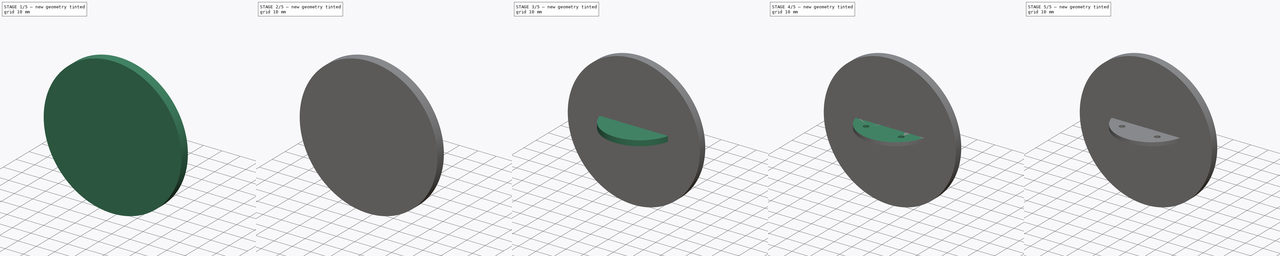
[diagram: build sequence overview — one tinted view per stage of 5, left to right]
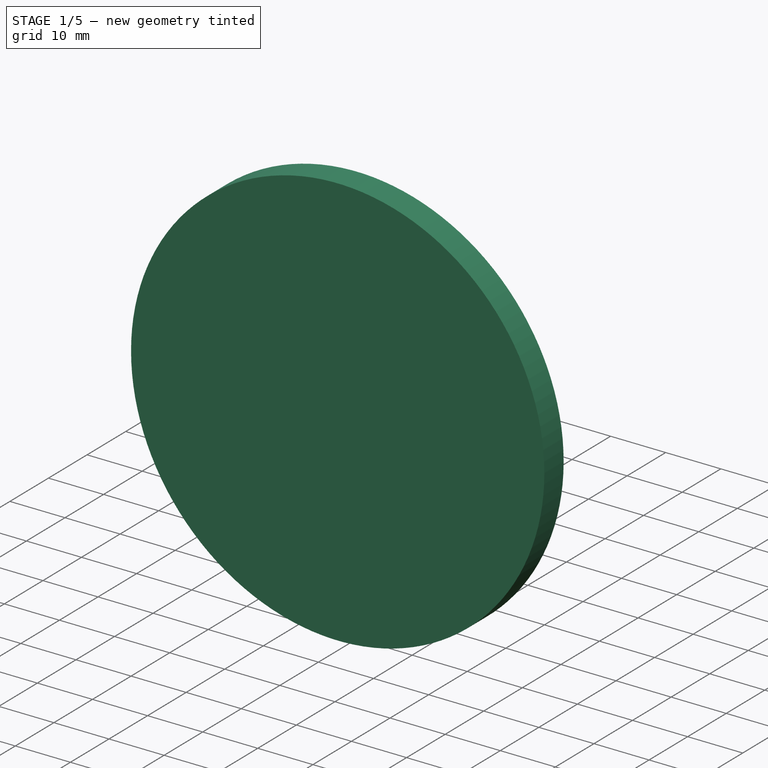
[diagram: stage 1 of 5 — iso view after this stage's code; geometry added in this stage tinted green]
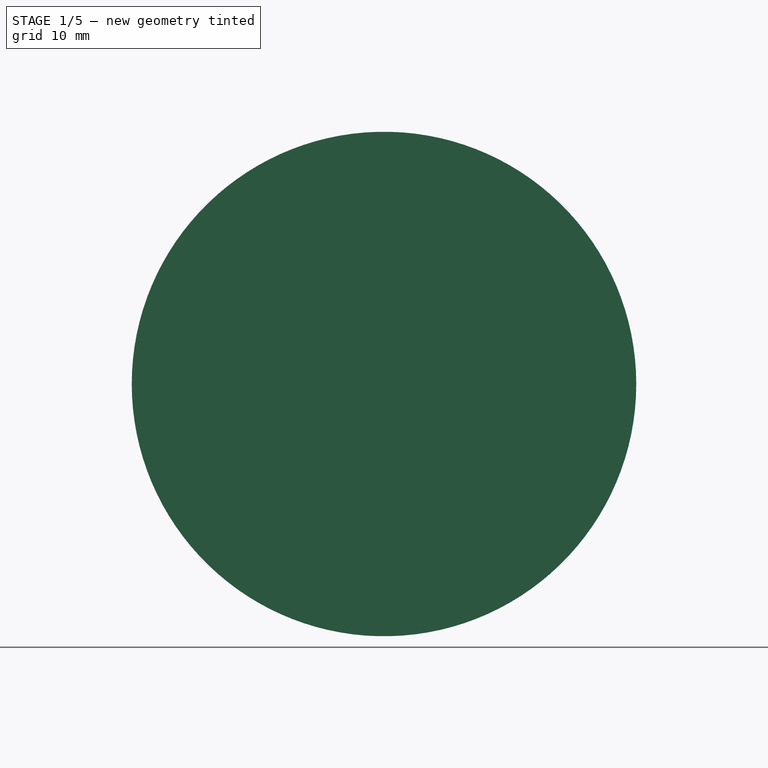
[diagram: stage 1 of 5 — front view after this stage's code; geometry added in this stage tinted green]
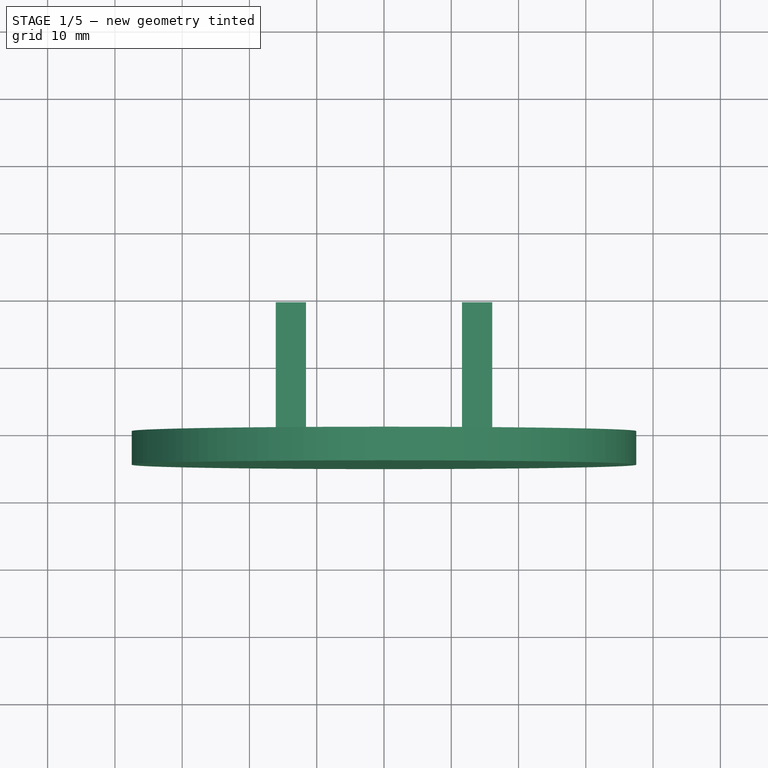
[diagram: stage 1 of 5 — top view after this stage's code; geometry added in this stage tinted green]
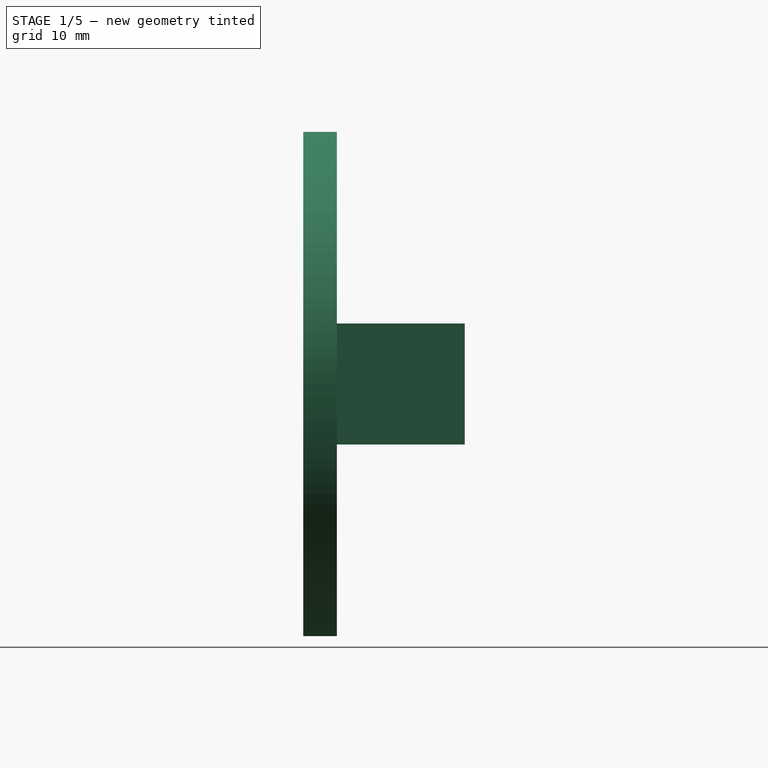
[diagram: stage 1 of 5 — right view after this stage's code; geometry added in this stage tinted green]
FCSTD DOCUMENT  (FreeCAD 1.2R20260429 (Git shallow))
Label: Camera Mount V2
License: All rights reserved
LicenseURL: https://en.wikipedia.org/wiki/All_rights_reserved
objects: Sketcher::SketchObject×14, PartDesign::Pad×8, PartDesign::Pocket×6, App::Point×3, PartDesign::SubShapeBinder×3, PartDesign::Body×3, PartDesign::Mirrored×3, PartDesign::Chamfer×3, Part::Feature×2, PartDesign::Fillet×2, Part::DatumPlane×1
note: 99 computed .brp shape members not serialized (recipe doc carries the construction recipe); baked Part::Feature solids carry a one-line shape summary decoded from their .brp

FEATURE [App::Point] Origin005  label="Origin-Point002"
  Role = Origin
FEATURE [Part::Feature] Part__Feature001  label="Tower Pro MG90S Micro servo"
  Placement = pos=(0,12,0) rot=(0,0,1;0rad)
  shape: bbox 32.28 x 33.03 x 12.77 mm, 767 faces (baked)
FEATURE [Sketcher::SketchObject] Sketch009
  ArcFitTolerance = 1e-06
  AttachmentSupport = -> [Origin004]
  ExternalTypes = [0]
  FullyConstrained = true
  MakeInternals = false
  MapMode = 5
  Placement = pos=(0,0,0) rot=(1,0,0;1.5708rad)
  sketch-geometry (1):
    g0: Circle CenterX=0 CenterY=0 CenterZ=0 NormalX=0 NormalY=0 NormalZ=1 AngleXU=0 Radius=37.5
  constraints (2):
    c: Coincident(g0,g-1)
    c: Diameter(g0) = 75
FEATURE [PartDesign::Pad] Pad003
  Direction = (0,-1,0)
  Length = 5
  Length2 = 10
  Profile = -> Sketch009
  ReferenceAxis = -> Sketch009 [N_Axis]
  Refine = true
  SideType = 0
  Suppressed = false
  Type = 0
  Type2 = 0
FEATURE [PartDesign::SubShapeBinder] Binder002
  BindCopyOnChange = 0
  BindMode = 0
  ClaimChildren = false
  Context = -> Body002 [Binder002.]
  Fuse = false
  MakeFace = true
  OffsetFill = false
  OffsetIntersection = false
  OffsetJoinType = 0
  OffsetOpenResult = false
  PartialLoad = false
  Placement = pos=(0,-20,0) rot=(0,0,1;0rad)
  Refine = true
  Relative = true
  Support = -> [Part__Feature001[Edge835,Edge1881,Edge850,Edge826,Edge1882,Edge847,Edge857,Edge1880]]
  _Version = 2
FEATURE [Sketcher::SketchObject] Sketch010
  ArcFitTolerance = 1e-06
  AttachmentSupport = -> [Pad003]
  ExternalGeometry = -> [Binder002]
  ExternalTypes = [0,0]
  FullyConstrained = false
  MakeInternals = false
  MapMode = 5
  Placement = pos=(0,0,0) rot=(0,0.707107,0.707107;3.14159rad)
  sketch-geometry (5):
    g0: LineSegment StartX=16.1 StartY=-9 StartZ=0 EndX=16.1 EndY=9 EndZ=0
    g1: LineSegment StartX=11.6 StartY=9 StartZ=0 EndX=11.6 EndY=-9 EndZ=0
    g2: Circle CenterX=13.75 CenterY=0 CenterZ=0 NormalX=0 NormalY=0 NormalZ=1 AngleXU=0 Radius=1.25
    g3: LineSegment StartX=11.6 StartY=9 StartZ=0 EndX=16.1 EndY=9 EndZ=0
    g4: LineSegment StartX=11.6 StartY=-9 StartZ=0 EndX=16.1 EndY=-9 EndZ=0
  constraints (11):
    c: DistanceX(g1,g0) = 4.5
    c: Coincident(g2,g-4)
    c: Diameter(g2) = 2.5
    c: DistanceY(g0,g0) = 18
    c: Symmetric(g0,g0,g-1)
    c: Equal(g1,g0)
    c: Symmetric(g1,g1,g-1)
    c: Coincident(g3,g1)
    c: Coincident(g3,g0)
    c: Coincident(g4,g1)
    c: Coincident(g4,g0)
FEATURE [PartDesign::Pad] Pad004
  BaseFeature = -> Pad003
  Direction = (0,1,-2e-16)
  Length = 19
  Length2 = 10
  Profile = -> Sketch010
  ReferenceAxis = -> Sketch010 [N_Axis]
  Refine = true
  SideType = 0
  Suppressed = false
  Type = 0
  Type2 = 0
FEATURE [PartDesign::Body] Body001  label="Top"
  AllowCompound = true
  Group = -> [Binder001,Sketch005,Pad001,DatumPlane,Sketch006,Pad002,Mirrored,Sketch007,Pocket005,Sketch008,Pocket006,Chamfer002]
  Origin = -> Origin002
  Placement = pos=(0,0,-3) rot=(0,0,1;0rad)
  Tip = -> Chamfer002
FEATURE [PartDesign::Pad] Pad005
  BaseFeature = -> Pad004
  Direction = (1e-16,1,-2e-16)
  Length = 19
  Length2 = 10
  Profile = -> Sketch010
  ReferenceAxis = -> Sketch010 [N_Axis]
  Refine = true
  SideType = 0
  Suppressed = false
  Type = 0
  Type2 = 0
FEATURE [Sketcher::SketchObject] Sketch011
  ArcFitTolerance = 1e-06
  AttachmentSupport = -> [Pad005]
  ExternalTypes = [0]
  FullyConstrained = true
  MakeInternals = false
  MapMode = 5
  Placement = pos=(-16.1,0,-5.1383e-12) rot=(0.57735,-0.57735,-0.57735;2.0944rad)
  sketch-geometry (4):
    g0: LineSegment StartX=-14 StartY=2.5 StartZ=0 EndX=-14 EndY=-2.5 EndZ=0
    g1: LineSegment StartX=-14 StartY=-2.5 StartZ=0 EndX=-4 EndY=-2.5 EndZ=0
    g2: LineSegment StartX=-4 StartY=-2.5 StartZ=0 EndX=-4 EndY=2.5 EndZ=0
    g3: LineSegment StartX=-4 StartY=2.5 StartZ=0 EndX=-14 EndY=2.5 EndZ=0
  constraints (11):
    c: Coincident(g0,g1)
    c: Coincident(g1,g2)
    c: Coincident(g2,g3)
    c: Coincident(g3,g0)
    c: Vertical(g2)
    c: Horizontal(g1)
    c: Horizontal(g3)
    c: DistanceX(g3,g3) = 10
    c: DistanceX(g2,g-1) = 4
    c: DistanceY(g0,g0) = 5
    c: Symmetric(g0,g0,g-1)
FEATURE [PartDesign::Mirrored] Mirrored001
  BaseFeature = -> Pad005
  MirrorPlane = -> Sketch010 [V_Axis]
  Originals = -> [Pad005]
  Refine = true
  Suppressed = false
  TransformMode = 0
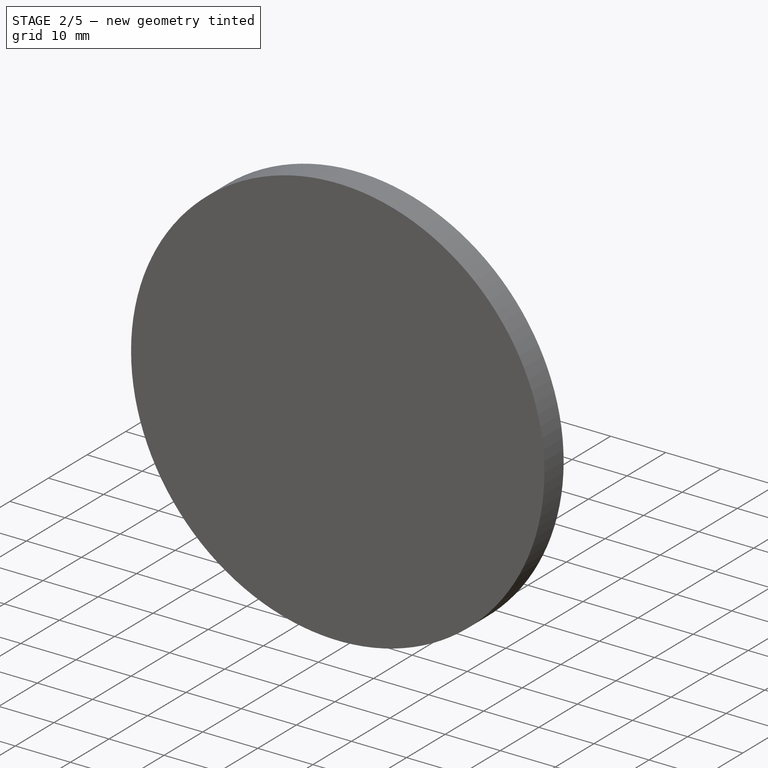
[diagram: stage 2 of 5 — iso view after this stage's code; geometry added in this stage tinted green]
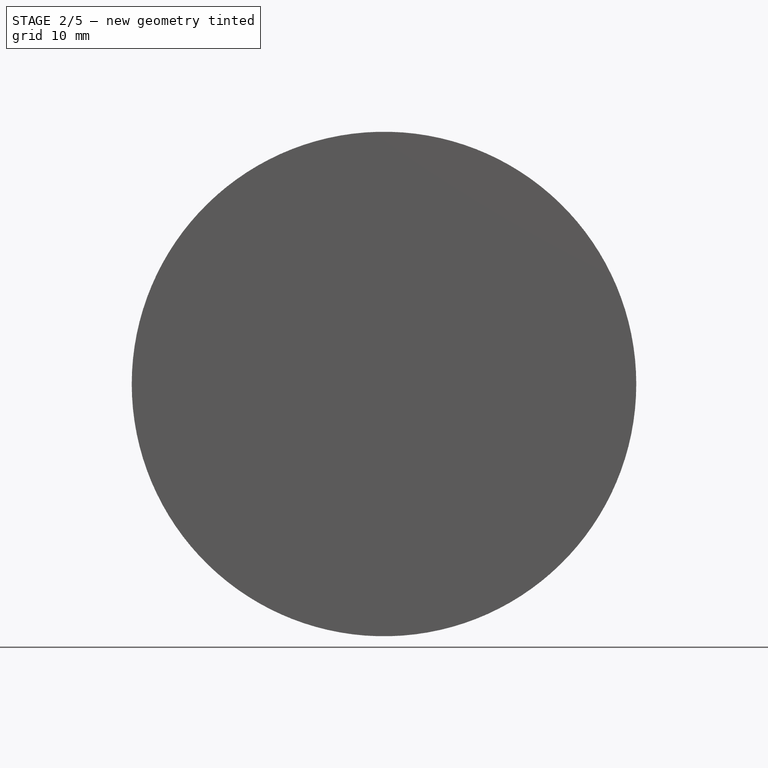
[diagram: stage 2 of 5 — front view after this stage's code; geometry added in this stage tinted green]
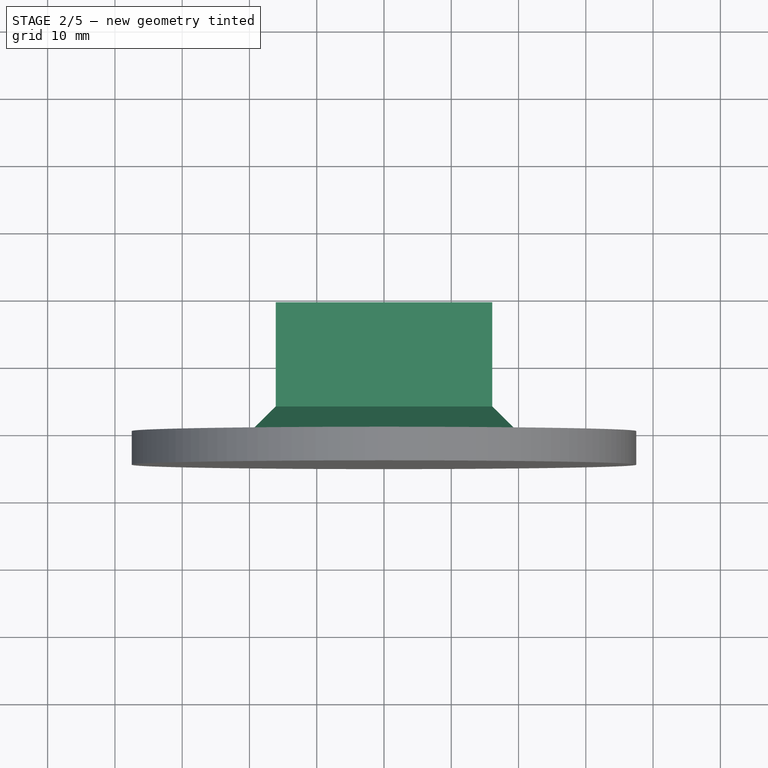
[diagram: stage 2 of 5 — top view after this stage's code; geometry added in this stage tinted green]
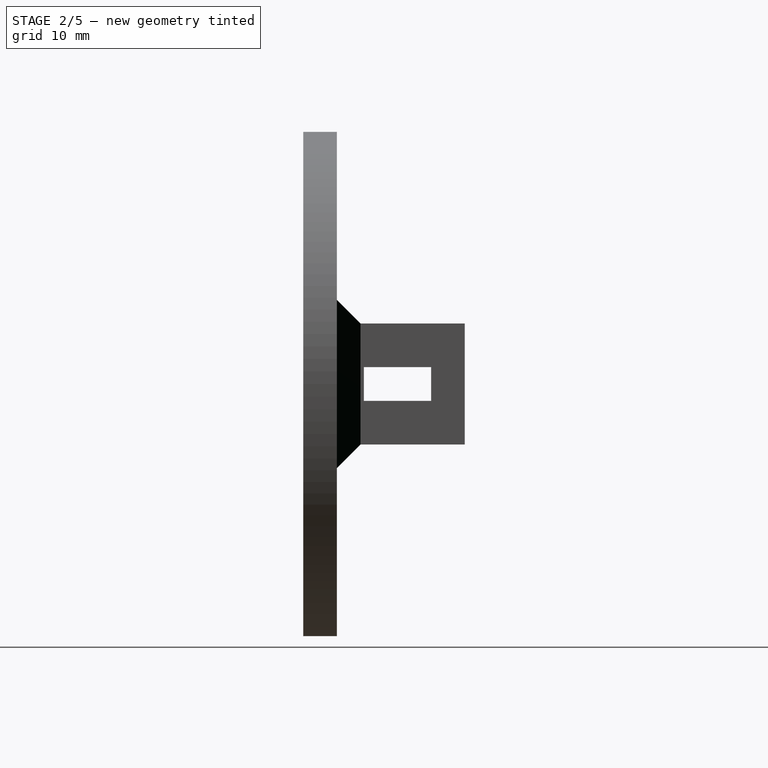
[diagram: stage 2 of 5 — right view after this stage's code; geometry added in this stage tinted green]
FEATURE [PartDesign::Pocket] Pocket007
  BaseFeature = -> Mirrored001
  Direction = (1,-1e-16,3.19e-13)
  Length = 5
  Length2 = 5
  Profile = -> Sketch011
  ReferenceAxis = -> Sketch011 [N_Axis]
  Refine = true
  SideType = 0
  Suppressed = false
  Type = 1
  Type2 = 0
FEATURE [Sketcher::SketchObject] Sketch012
  ArcFitTolerance = 1e-06
  AttachmentSupport = -> [Pocket007]
  ExternalTypes = [0,0]
  FullyConstrained = true
  MakeInternals = false
  MapMode = 5
  Placement = pos=(0,0,0) rot=(0,0.707107,0.707107;3.14159rad)
FEATURE [Sketcher::SketchObject] Sketch013
  ArcFitTolerance = 1e-06
  AttachmentSupport = -> [Pocket007]
  ExternalGeometry = -> [Pocket007]
  ExternalTypes = [0,0]
  FullyConstrained = true
  MakeInternals = false
  MapMode = 5
  Placement = pos=(0,0,0) rot=(0,0.707107,0.707107;3.14159rad)
  sketch-geometry (4):
    g0: LineSegment StartX=-11.6 StartY=-9 StartZ=0 EndX=11.6 EndY=-9 EndZ=0
    g1: LineSegment StartX=11.6 StartY=-9 StartZ=0 EndX=11.6 EndY=-6.5 EndZ=0
    g2: LineSegment StartX=11.6 StartY=-6.5 StartZ=0 EndX=-11.6 EndY=-6.5 EndZ=0
    g3: LineSegment StartX=-11.6 StartY=-6.5 StartZ=0 EndX=-11.6 EndY=-9 EndZ=0
  constraints (10):
    c: Coincident(g0,g1)
    c: Coincident(g1,g2)
    c: Coincident(g2,g3)
    c: Coincident(g3,g0)
    c: Horizontal(g2)
    c: Vertical(g1)
    c: Vertical(g3)
    c: Coincident(g0,g-3)
    c: Coincident(g0,g-4)
    c: DistanceY(g3,g3) = 2.5
FEATURE [PartDesign::Pad] Pad006
  BaseFeature = -> Pocket007
  Direction = (0,1,-2e-16)
  Length = 19
  Length2 = 10
  Profile = -> Sketch013
  ReferenceAxis = -> Sketch013 [N_Axis]
  Refine = true
  SideType = 0
  Suppressed = false
  Type = 0
  Type2 = 0
FEATURE [PartDesign::Mirrored] Mirrored002
  BaseFeature = -> Pad006
  MirrorPlane = -> XY_Plane002
  Originals = -> [Pad006]
  Refine = true
  Suppressed = false
  TransformMode = 0
FEATURE [PartDesign::Chamfer] Chamfer
  Angle = 45
  Base = -> Mirrored002 [Edge7,Edge6,Edge4,Edge5]
  BaseFeature = -> Mirrored002
  ChamferType = 0
  FlipDirection = false
  Refine = true
  Size = 3.5
  Size2 = 1
  SupportTransform = false
  Suppressed = false
  UseAllEdges = false
FEATURE [PartDesign::Chamfer] Chamfer003
  Angle = 45
  Base = -> Chamfer [Edge37,Edge36]
  BaseFeature = -> Chamfer
  ChamferType = 0
  FlipDirection = false
  Refine = true
  Size = 0.5
  Size2 = 1
  SupportTransform = false
  Suppressed = false
  UseAllEdges = false
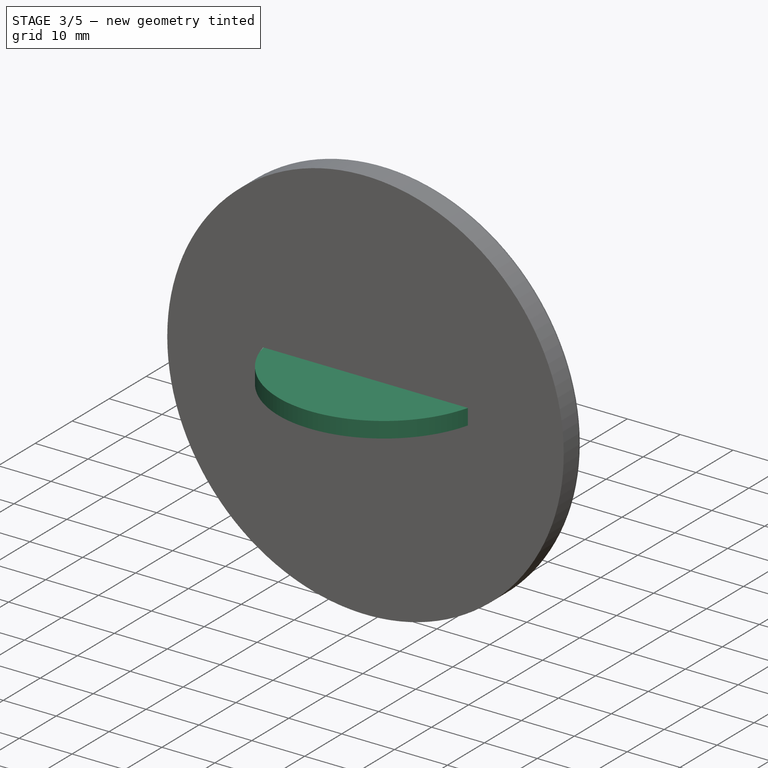
[diagram: stage 3 of 5 — iso view after this stage's code; geometry added in this stage tinted green]
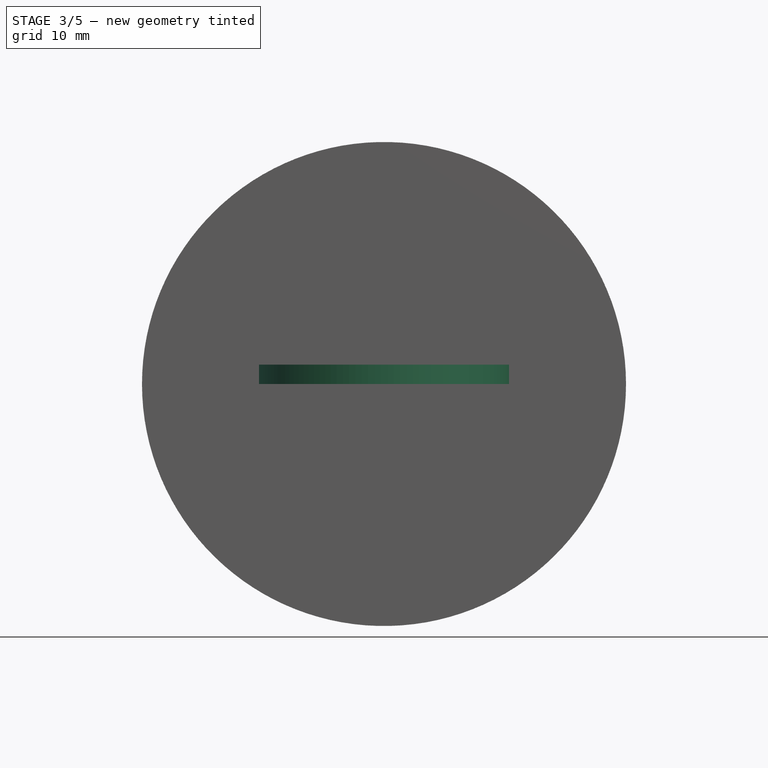
[diagram: stage 3 of 5 — front view after this stage's code; geometry added in this stage tinted green]
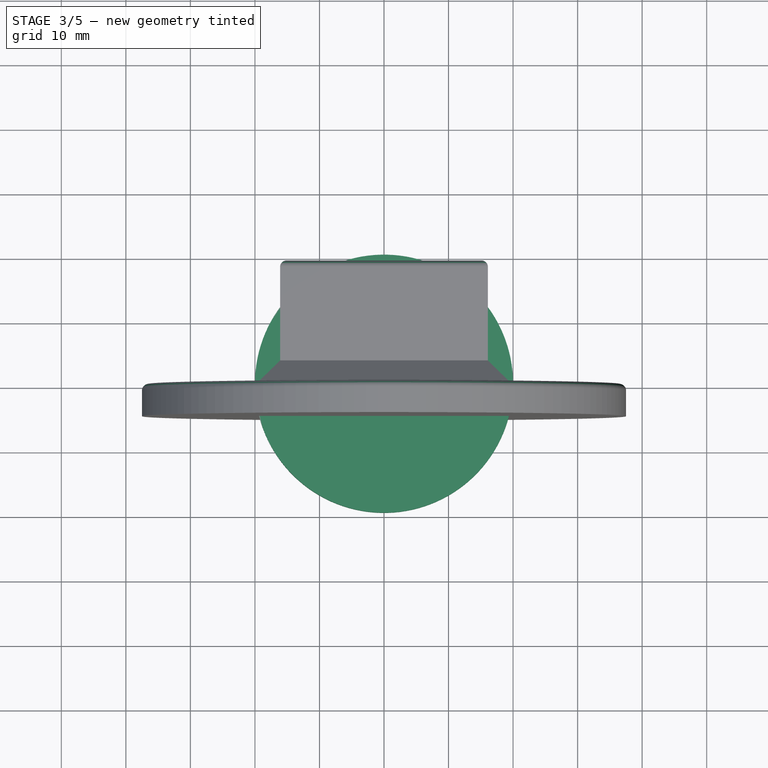
[diagram: stage 3 of 5 — top view after this stage's code; geometry added in this stage tinted green]
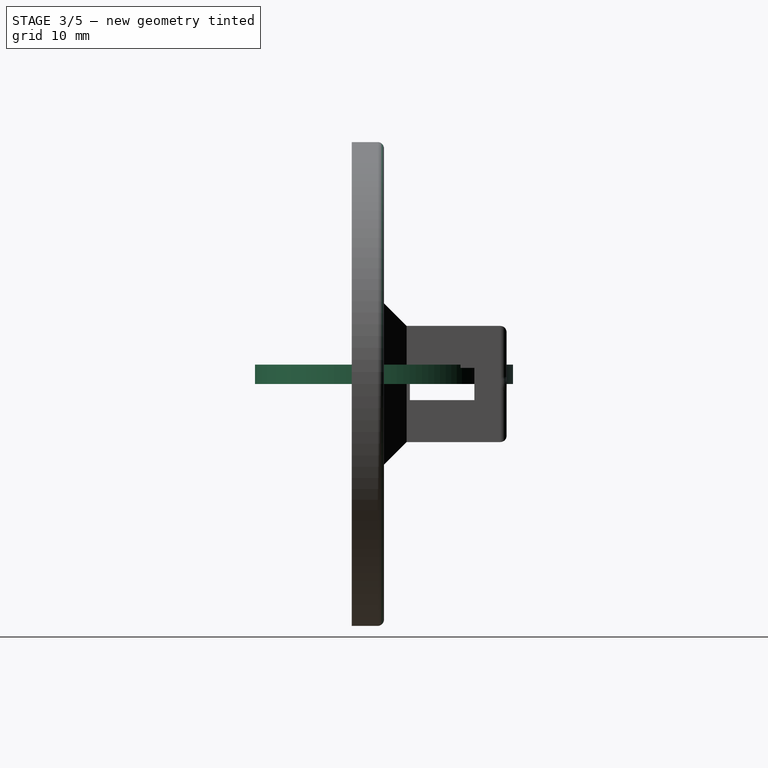
[diagram: stage 3 of 5 — right view after this stage's code; geometry added in this stage tinted green]
FEATURE [App::Point] Origin001  label="Origin-Point"
  Role = Origin
FEATURE [Part::Feature] Part__Feature  label="MG90s_Horn v4"
  Placement = pos=(0,9e-16,10) rot=(1,0,0;3.14159rad)
  shape: bbox 36 x 8 x 5 mm, 54 faces (baked)
FEATURE [Sketcher::SketchObject] Sketch
  ArcFitTolerance = 1e-06
  ExternalTypes = [0]
  FullyConstrained = true
  MakeInternals = false
  MapMode = 4
  sketch-geometry (1):
    g0: Circle CenterX=0 CenterY=0 CenterZ=0 NormalX=0 NormalY=0 NormalZ=1 AngleXU=0 Radius=20
  constraints (2):
    c: Coincident(g0,g-1)
    c: Diameter(g0) = 40
FEATURE [PartDesign::Pad] Pad
  Direction = (0,0,1)
  Length = 3
  Length2 = 10
  Profile = -> Sketch
  ReferenceAxis = -> Sketch [N_Axis]
  Refine = true
  SideType = 0
  Suppressed = false
  Type = 0
  Type2 = 0
FEATURE [Sketcher::SketchObject] Sketch014
  ArcFitTolerance = 1e-06
  AttachmentSupport = -> [Chamfer003]
  ExternalGeometry = -> [Chamfer003]
  ExternalTypes = [0,0]
  FullyConstrained = true
  MakeInternals = false
  MapMode = 5
  Placement = pos=(4e-16,4,-4e-16) rot=(0,0.707107,0.707107;3.14159rad)
FEATURE [PartDesign::Pad] Pad007
  BaseFeature = -> Chamfer003
  Direction = (0,1,-2e-16)
  Length = 8
  Length2 = 10
  Profile = -> Sketch014
  ReferenceAxis = -> Sketch014 [N_Axis]
  Refine = true
  Reversed = true
  SideType = 0
  Suppressed = false
  Type = 0
  Type2 = 0
FEATURE [PartDesign::Fillet] Fillet
  Base = -> Pad007 [Edge5,Edge2,Edge3,Edge4]
  BaseFeature = -> Pad007
  Radius = 1
  Refine = true
  SupportTransform = false
  Suppressed = false
  UseAllEdges = false
FEATURE [PartDesign::Fillet] Fillet001
  Base = -> Fillet [Edge93]
  BaseFeature = -> Fillet
  Radius = 1
  Refine = true
  SupportTransform = false
  Suppressed = false
  UseAllEdges = false
FEATURE [PartDesign::Body] Body002  label="Body"
  AllowCompound = true
  Group = -> [Sketch009,Pad003,Sketch010,Binder002,Pad004,Pad005,Sketch011,Mirrored001,Pocket007,Sketch012,Sketch013,Pad006,Mirrored002,Chamfer,Chamfer003,Sketch014,Pad007,Fillet,Fillet001]
  Origin = -> Origin004
  Tip = -> Fillet001
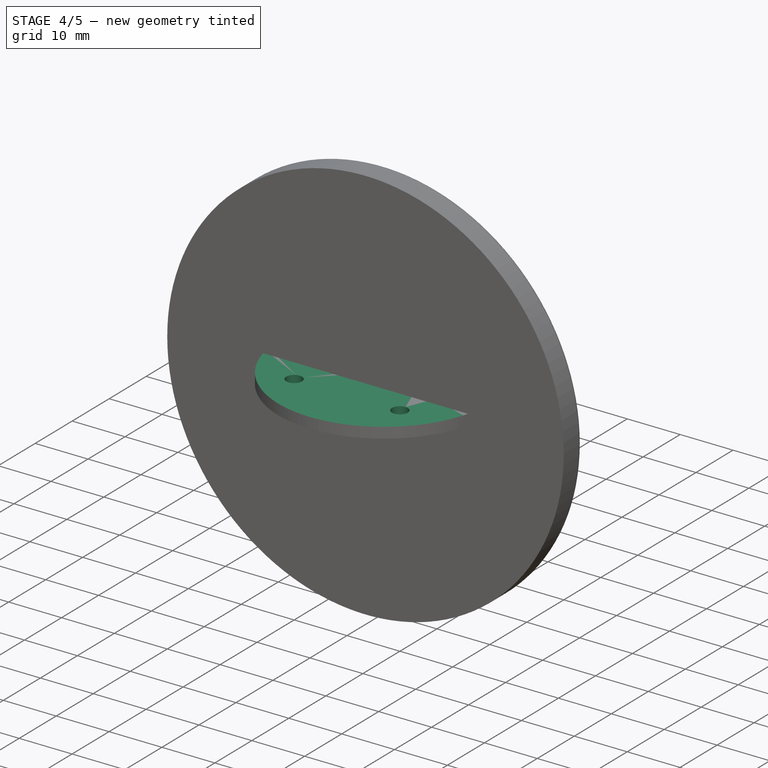
[diagram: stage 4 of 5 — iso view after this stage's code; geometry added in this stage tinted green]
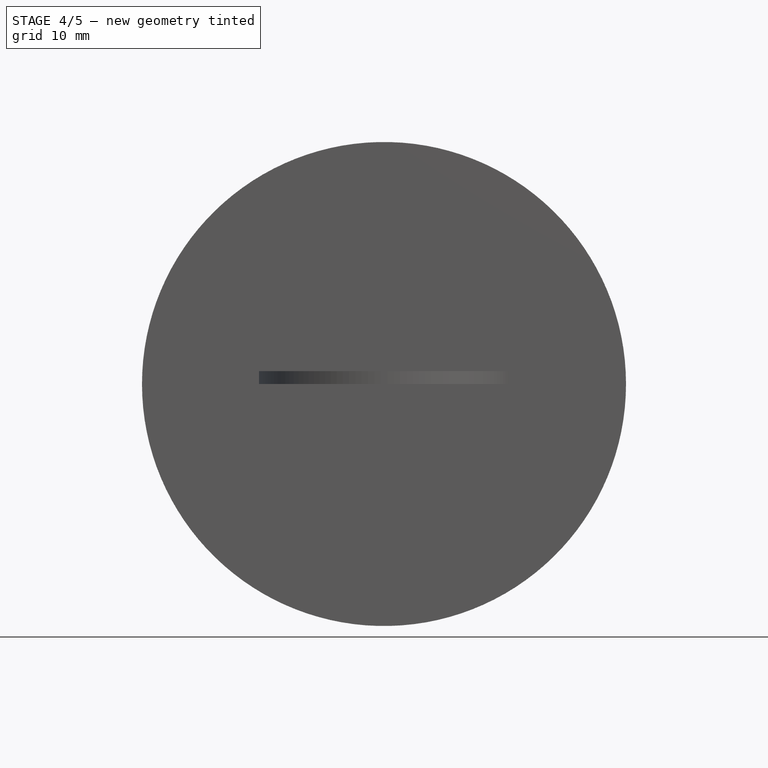
[diagram: stage 4 of 5 — front view after this stage's code; geometry added in this stage tinted green]
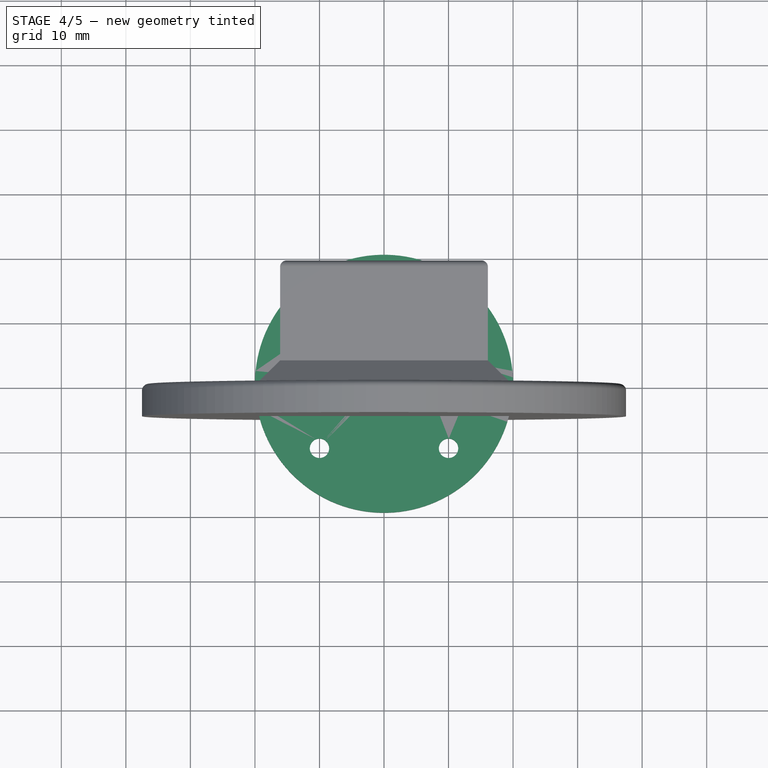
[diagram: stage 4 of 5 — top view after this stage's code; geometry added in this stage tinted green]
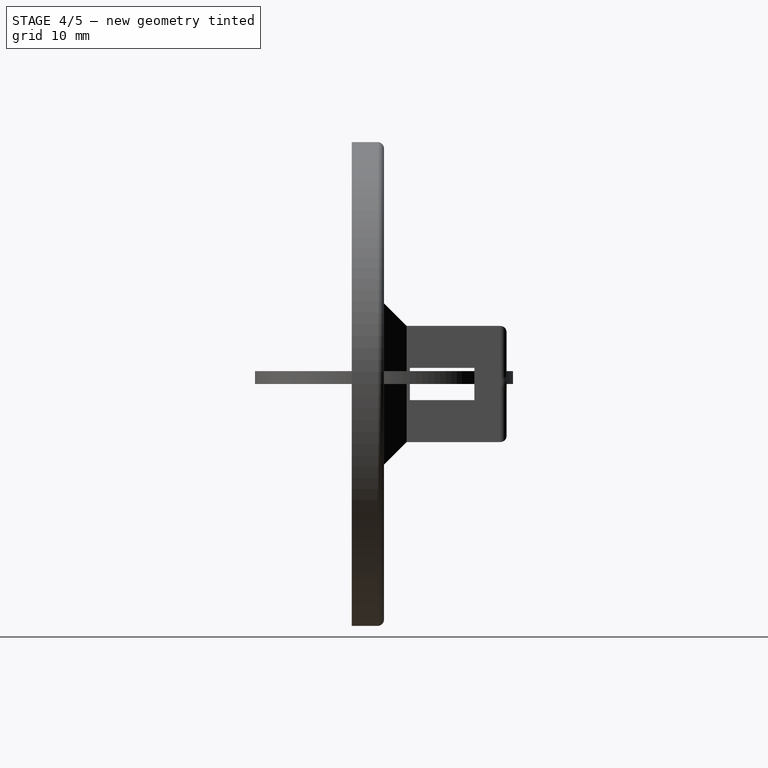
[diagram: stage 4 of 5 — right view after this stage's code; geometry added in this stage tinted green]
FEATURE [PartDesign::SubShapeBinder] Binder
  BindCopyOnChange = 0
  BindMode = 0
  ClaimChildren = false
  Context = -> Body [Binder.]
  Fuse = false
  MakeFace = true
  Offset = -1
  OffsetFill = true
  OffsetIntersection = true
  OffsetJoinType = 0
  OffsetOpenResult = true
  PartialLoad = false
  Refine = true
  Relative = true
  Support = -> [Part__Feature[Edge85,Edge91,Edge83,Edge84,Edge110,Edge111,Edge97,Edge95]]
  _Version = 2
FEATURE [Sketcher::SketchObject] Sketch001
  ArcFitTolerance = 1e-06
  AttachmentSupport = -> [Pad]
  ExternalTypes = [0,0,0,0,0,0,0,0,0,0,0,0]
  FullyConstrained = false
  MakeInternals = false
  MapMode = 5
  Placement = pos=(0,0,3) rot=(0,0,1;0rad)
  sketch-geometry (8):
    g0: ArcOfCircle CenterX=1e-16 CenterY=0.00102712 CenterZ=0 NormalX=0 NormalY=0 NormalZ=1 AngleXU=0 Radius=3.99909 StartAngle=1.07846 EndAngle=2.06313
    g1: ArcOfCircle CenterX=0 CenterY=0.025971 CenterZ=0 NormalX=0 NormalY=0 NormalZ=1 AngleXU=0 Radius=4.02291 StartAngle=4.22323 EndAngle=5.20155
    g2: ArcOfCircle CenterX=16.55 CenterY=-0.418209 CenterZ=0 NormalX=0 NormalY=0 NormalZ=1 AngleXU=0 Radius=2 StartAngle=4.79438 EndAngle=7.772
    g3: ArcOfCircle CenterX=-16.55 CenterY=-0.42031 CenterZ=0 NormalX=0 NormalY=0 NormalZ=1 AngleXU=0 Radius=2 StartAngle=1.65268 EndAngle=4.6305
    g4: LineSegment StartX=-16.7136 StartY=1.57299 StartZ=0 EndX=-1.8903 EndY=3.52516 EndZ=0
    g5: LineSegment StartX=-16.7136 StartY=-2.41361 StartZ=0 EndX=-1.8903 EndY=-3.52516 EndZ=0
    g6: LineSegment StartX=1.8903 StartY=-3.52516 StartZ=0 EndX=16.7138 EndY=-2.41149 EndZ=0
    g7: LineSegment StartX=1.8903 StartY=3.52516 StartZ=0 EndX=16.7138 EndY=1.57507 EndZ=0
  constraints (12):
    c: Radius(g2) = 2
    c: Distance(g3,g-2) = 16.55
    c: Distance(g2,g-2) = 16.55
    c: Radius(g3) = 2
    c: Coincident(g4,g3)
    c: Coincident(g4,g0)
    c: Coincident(g5,g3)
    c: PointOnObject(g5,g1)
    c: PointOnObject(g6,g1)
    c: Coincident(g6,g2)
    c: Coincident(g7,g0)
    c: Coincident(g7,g2)
FEATURE [PartDesign::Pocket] Pocket
  BaseFeature = -> Pad
  Direction = (0,0,-1)
  Length = 2.25
  Length2 = 5
  Profile = -> Sketch001
  ReferenceAxis = -> Sketch001 [N_Axis]
  Refine = true
  SideType = 0
  Suppressed = false
  Type = 0
  Type2 = 0
FEATURE [Sketcher::SketchObject] Sketch002
  ArcFitTolerance = 1e-06
  AttachmentSupport = -> [Pocket]
  ExternalTypes = [0]
  FullyConstrained = false
  MakeInternals = false
  MapMode = 5
  Placement = pos=(0,0,0.75) rot=(0,0,1;0rad)
  sketch-geometry (1):
    g0: Circle CenterX=0 CenterY=0 CenterZ=0 NormalX=0 NormalY=0 NormalZ=1 AngleXU=0 Radius=3.90794
  constraints (1):
    c: Coincident(g0,g-1)
FEATURE [PartDesign::Pocket] Pocket001
  BaseFeature = -> Pocket
  Direction = (0,0,-1)
  Length = 2
  Length2 = 5
  Profile = -> Sketch002
  ReferenceAxis = -> Sketch002 [N_Axis]
  Refine = true
  SideType = 0
  Suppressed = false
  Type = 0
  Type2 = 0
FEATURE [Sketcher::SketchObject] Sketch004
  ArcFitTolerance = 1e-06
  AttachmentSupport = -> [Pocket001]
  ExternalTypes = [0]
  FullyConstrained = true
  MakeInternals = false
  MapMode = 5
  Placement = pos=(0,0,3) rot=(0,0,1;0rad)
  sketch-geometry (4):
    g0: Circle CenterX=-10 CenterY=10 CenterZ=0 NormalX=0 NormalY=0 NormalZ=1 AngleXU=0 Radius=1
    g1: Circle CenterX=10 CenterY=10 CenterZ=0 NormalX=0 NormalY=0 NormalZ=1 AngleXU=0 Radius=1
    g2: Circle CenterX=10 CenterY=-10 CenterZ=0 NormalX=0 NormalY=0 NormalZ=1 AngleXU=0 Radius=1
    g3: Circle CenterX=-10 CenterY=-10 CenterZ=0 NormalX=0 NormalY=0 NormalZ=1 AngleXU=0 Radius=1
  constraints (10):
    c: Equal(g3,g2)
    c: Equal(g2,g1)
    c: Equal(g1,g0)
    c: Diameter(g0) = 2
    c: Horizontal(g0,g1)
    c: Vertical(g1,g2)
    c: DistanceY(g3,g0) = 20
    c: DistanceX(g3,g2) = 20
    c: Symmetric(g3,g2,g-2)
    c: Symmetric(g0,g3,g-1)
FEATURE [PartDesign::Pocket] Pocket004
  BaseFeature = -> Pocket001
  Direction = (0,0,-1)
  Length = 5
  Length2 = 5
  Profile = -> Sketch004
  ReferenceAxis = -> Sketch004 [N_Axis]
  Refine = true
  SideType = 0
  Suppressed = false
  Type = 0
  Type2 = 0
FEATURE [PartDesign::Body] Body  label="Bottom"
  AllowCompound = true
  Group = -> [Sketch,Pad,Binder,Sketch001,Pocket,Sketch002,Pocket001,Sketch004,Pocket004]
  Origin = -> Origin
  Tip = -> Pocket004
FEATURE [App::Point] Origin003  label="Origin-Point001"
  Role = Origin
FEATURE [PartDesign::SubShapeBinder] Binder001
  BindCopyOnChange = 0
  BindMode = 0
  ClaimChildren = false
  Context = -> Body001 [Binder001.]
  Fuse = false
  MakeFace = true
  OffsetFill = false
  OffsetIntersection = false
  OffsetJoinType = 0
  OffsetOpenResult = false
  PartialLoad = false
  Refine = true
  Relative = true
  Support = -> [Body[Pocket004.Edge10,Pocket004.Edge9,Pocket004.Edge11,Pocket004.Edge20,Pocket004.Edge3]]
  _Version = 2
FEATURE [Sketcher::SketchObject] Sketch005
  ArcFitTolerance = 1e-06
  ExternalGeometry = -> [Binder001]
  ExternalTypes = [0,0,0,0]
  FullyConstrained = true
  MakeInternals = false
  sketch-geometry (6):
    g0: Circle CenterX=0 CenterY=0 CenterZ=0 NormalX=0 NormalY=0 NormalZ=1 AngleXU=0 Radius=20
    g1: Circle CenterX=10 CenterY=10 CenterZ=0 NormalX=0 NormalY=0 NormalZ=1 AngleXU=0 Radius=1.5
    g2: Circle CenterX=-10 CenterY=10 CenterZ=0 NormalX=0 NormalY=0 NormalZ=1 AngleXU=0 Radius=1.5
    g3: Circle CenterX=-10 CenterY=-10 CenterZ=0 NormalX=0 NormalY=0 NormalZ=1 AngleXU=0 Radius=1.5
    g4: Circle CenterX=10 CenterY=-10 CenterZ=0 NormalX=0 NormalY=0 NormalZ=1 AngleXU=0 Radius=1.5
    g5: Circle CenterX=0 CenterY=0 CenterZ=0 NormalX=0 NormalY=0 NormalZ=1 AngleXU=0 Radius=5
  constraints (12):
    c: Coincident(g0,g-1)
    c: Diameter(g0) = 40
    c: Coincident(g1,g-4)
    c: Coincident(g2,g-3)
    c: Coincident(g3,g-6)
    c: Coincident(g4,g-5)
    c: Coincident(g5,g0)
    c: Equal(g1,g4)
    c: Equal(g4,g3)
    c: Equal(g3,g2)
    c: Diameter(g2) = 3
    c: Diameter(g5) = 10
FEATURE [PartDesign::Pad] Pad001
  Direction = (0,0,1)
  Length = 2
  Length2 = 10
  Profile = -> Sketch005
  ReferenceAxis = -> Sketch005 [N_Axis]
  Refine = true
  SideType = 0
  Suppressed = false
  Type = 0
  Type2 = 0
FEATURE [Part::DatumPlane] DatumPlane
  MapMode = 3
  Placement = pos=(0,0,0) rot=(0,1,0;1.5708rad)
FEATURE [Sketcher::SketchObject] Sketch006
  ArcFitTolerance = 1e-06
  AttachmentOffset = pos=(0,0,8.1) rot=(0,0,1;0rad)
  AttachmentSupport = -> [DatumPlane]
  ExternalGeometry = -> [Pad001]
  ExternalTypes = [0]
  FullyConstrained = false
  MakeInternals = false
  MapMode = 5
  Placement = pos=(8.1,0,1.8e-15) rot=(0,1,0;1.5708rad)
  sketch-geometry (4):
    g0: LineSegment StartX=-1.9 StartY=3.5 StartZ=0 EndX=-6.9 EndY=3.5 EndZ=0
    g1: LineSegment StartX=-6.9 StartY=-3.5 StartZ=0 EndX=-1.9 EndY=-3.5 EndZ=0
    g2: LineSegment StartX=-1.9 StartY=-3.5 StartZ=0 EndX=-1.9 EndY=3.5 EndZ=0
    g3: ArcOfCircle CenterX=-6.9 CenterY=0 CenterZ=0 NormalX=0 NormalY=0 NormalZ=1 AngleXU=0 Radius=3.5 StartAngle=1.5708 EndAngle=4.71239
  constraints (11):
    c: Coincident(g1,g2)
    c: Coincident(g2,g0)
    c: Horizontal(g0)
    c: Horizontal(g1)
    c: DistanceX(g1,g1) = 5
    c: DistanceY(g1,g0) = 7
    c: Symmetric(g1,g0,g-1)
    c: DistanceX(g1,g-3) = -0.1
    c: Symmetric(g0,g1,g3)
    c: Coincident(g3,g1)
    c: Coincident(g3,g0)
FEATURE [PartDesign::Pad] Pad002
  BaseFeature = -> Pad001
  Direction = (1,0,2e-16)
  Length = 4
  Length2 = 10
  Profile = -> Sketch006
  ReferenceAxis = -> Sketch006 [N_Axis]
  Refine = true
  SideType = 0
  Suppressed = false
  Type = 0
  Type2 = 0
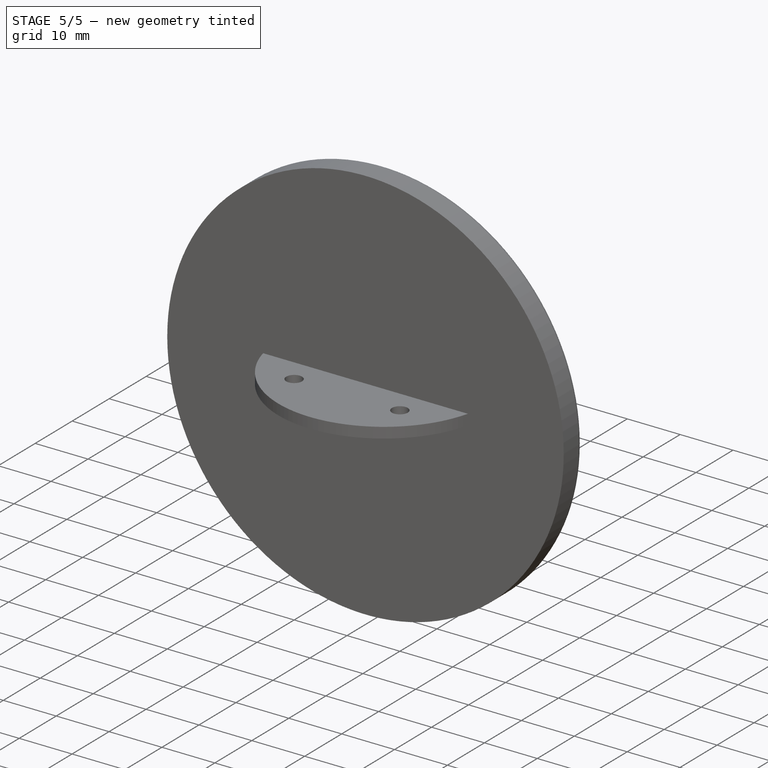
[diagram: stage 5 of 5 — iso view after this stage's code; geometry added in this stage tinted green]
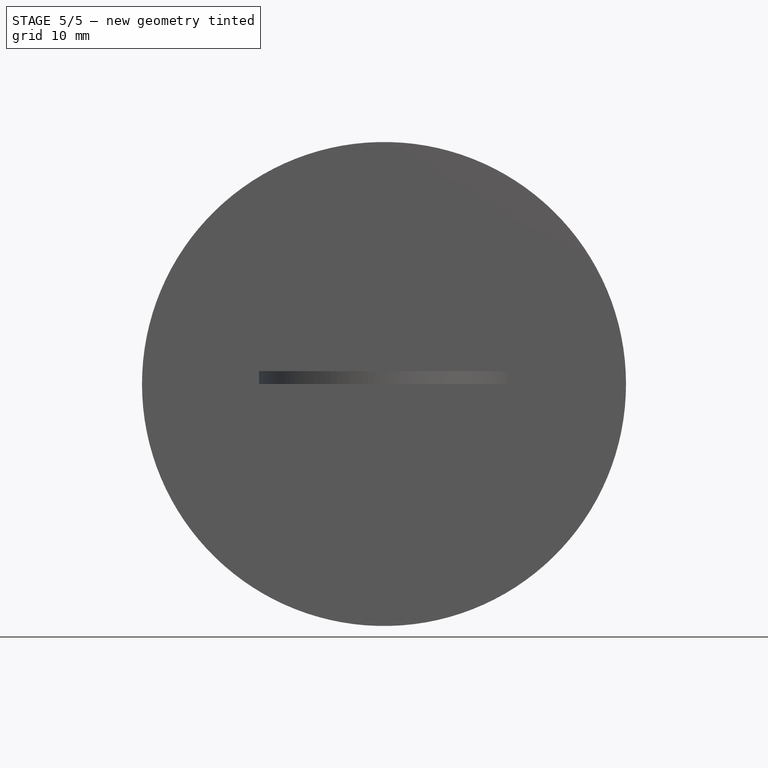
[diagram: stage 5 of 5 — front view after this stage's code; geometry added in this stage tinted green]
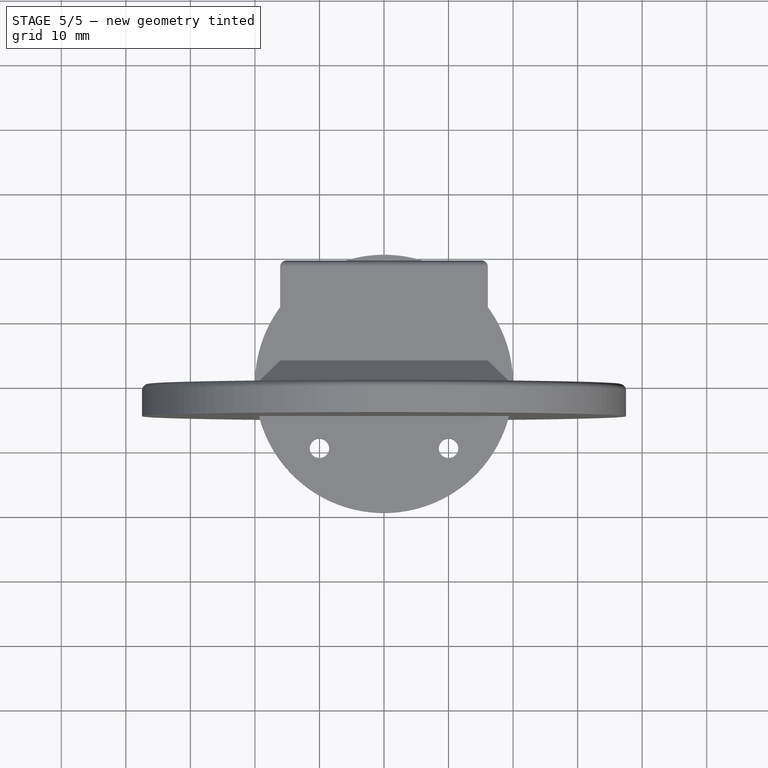
[diagram: stage 5 of 5 — top view after this stage's code; geometry added in this stage tinted green]
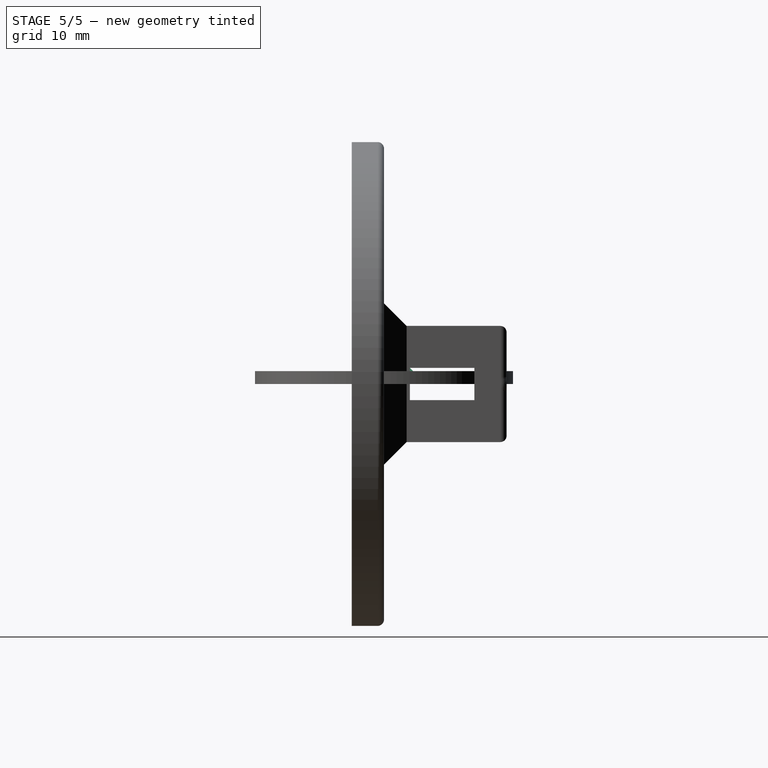
[diagram: stage 5 of 5 — right view after this stage's code; geometry added in this stage tinted green]
FEATURE [PartDesign::Mirrored] Mirrored
  BaseFeature = -> Pad002
  MirrorPlane = -> YZ_Plane001
  Originals = -> [Pad002]
  Refine = true
  Suppressed = false
  TransformMode = 0
FEATURE [Sketcher::SketchObject] Sketch007
  ArcFitTolerance = 1e-06
  AttachmentSupport = -> [Mirrored]
  ExternalGeometry = -> [Mirrored]
  ExternalTypes = [0]
  FullyConstrained = true
  MakeInternals = false
  MapMode = 5
  Placement = pos=(12.1,0,3e-15) rot=(0.57735,0.57735,0.57735;2.0944rad)
  sketch-geometry (1):
    g0: Circle CenterX=0 CenterY=6.9 CenterZ=0 NormalX=0 NormalY=0 NormalZ=1 AngleXU=0 Radius=1.25
  constraints (2):
    c: Coincident(g0,g-3)
    c: Diameter(g0) = 2.5
FEATURE [PartDesign::Pocket] Pocket005
  BaseFeature = -> Mirrored
  Direction = (-1,0,0)
  Length = 5
  Length2 = 5
  Profile = -> Sketch007
  ReferenceAxis = -> Sketch007 [N_Axis]
  Refine = true
  SideType = 0
  Suppressed = false
  Type = 1
  Type2 = 0
FEATURE [Sketcher::SketchObject] Sketch008
  ArcFitTolerance = 1e-06
  AttachmentSupport = -> [Pocket005]
  ExternalGeometry = -> [Pocket005]
  ExternalTypes = [0]
  FullyConstrained = true
  MakeInternals = false
  MapMode = 5
  Placement = pos=(12.1,0,3e-15) rot=(0.57735,0.57735,0.57735;2.0944rad)
  sketch-geometry (1):
    g0: Circle CenterX=0 CenterY=6.9 CenterZ=0 NormalX=0 NormalY=0 NormalZ=1 AngleXU=0 Radius=2.5
  constraints (2):
    c: Coincident(g0,g-3)
    c: Diameter(g0) = 5
FEATURE [PartDesign::Pocket] Pocket006
  BaseFeature = -> Pocket005
  Direction = (-1,0,0)
  Length = 2
  Length2 = 5
  Profile = -> Sketch008
  ReferenceAxis = -> Sketch008 [N_Axis]
  Refine = true
  SideType = 0
  Suppressed = false
  Type = 0
  Type2 = 0
FEATURE [PartDesign::Chamfer] Chamfer002
  Angle = 45
  Base = -> Pocket006 [Edge20,Edge18,Edge19,Edge17,Edge12,Edge11,Edge14,Edge13]
  BaseFeature = -> Pocket006
  ChamferType = 0
  FlipDirection = false
  Refine = true
  Size = 1
  Size2 = 1
  SupportTransform = false
  Suppressed = false
  UseAllEdges = false
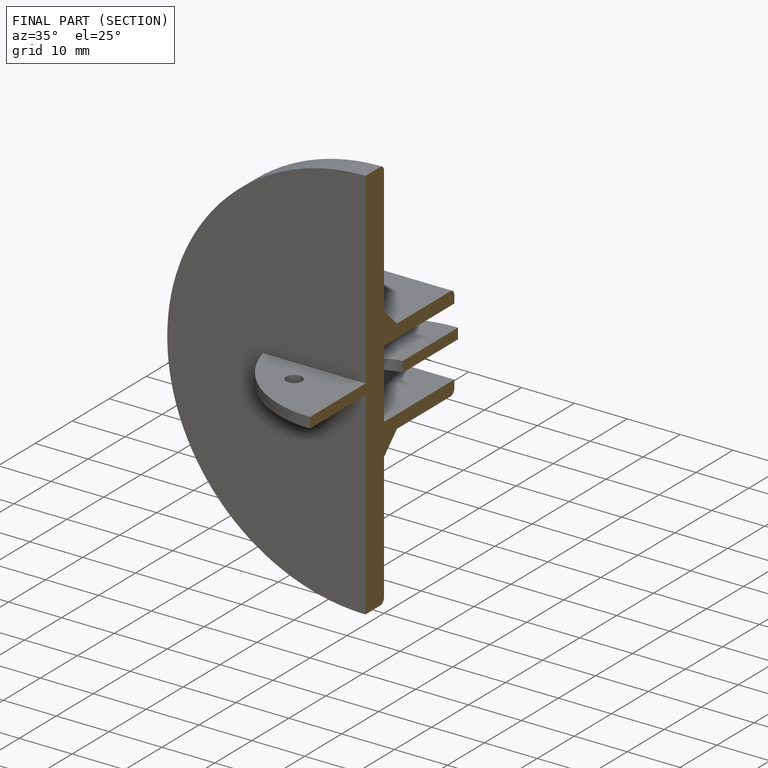
[diagram: finished part — half-section view (interior)]
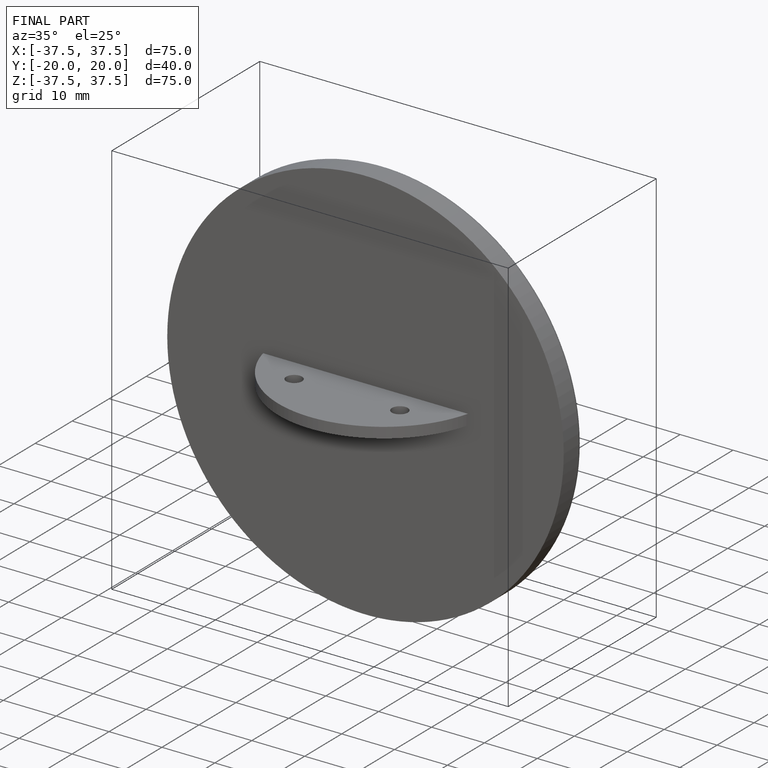
[diagram: finished part — iso view with bounding-box wireframe]
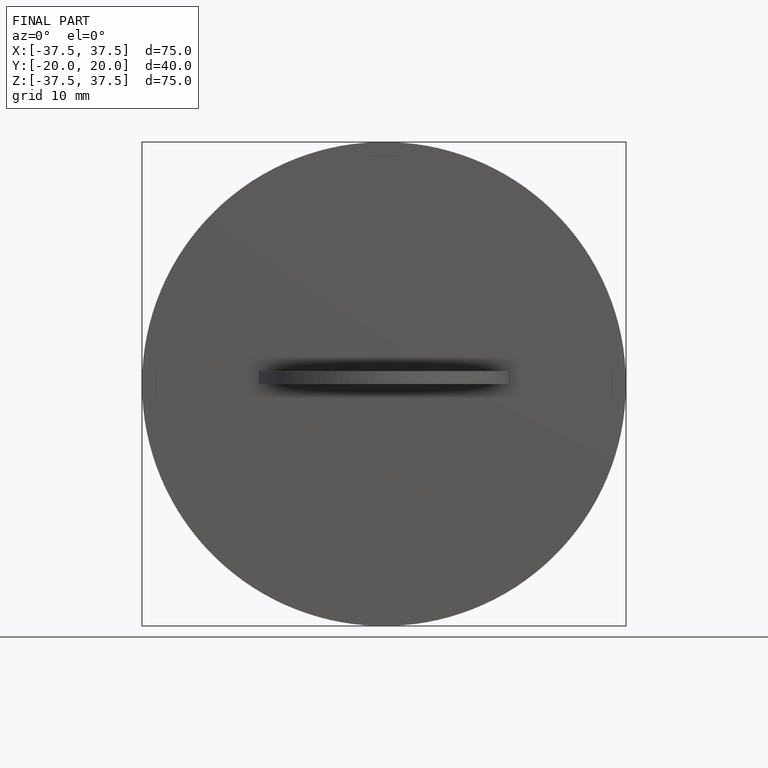
[diagram: finished part — front view with bounding-box wireframe]
